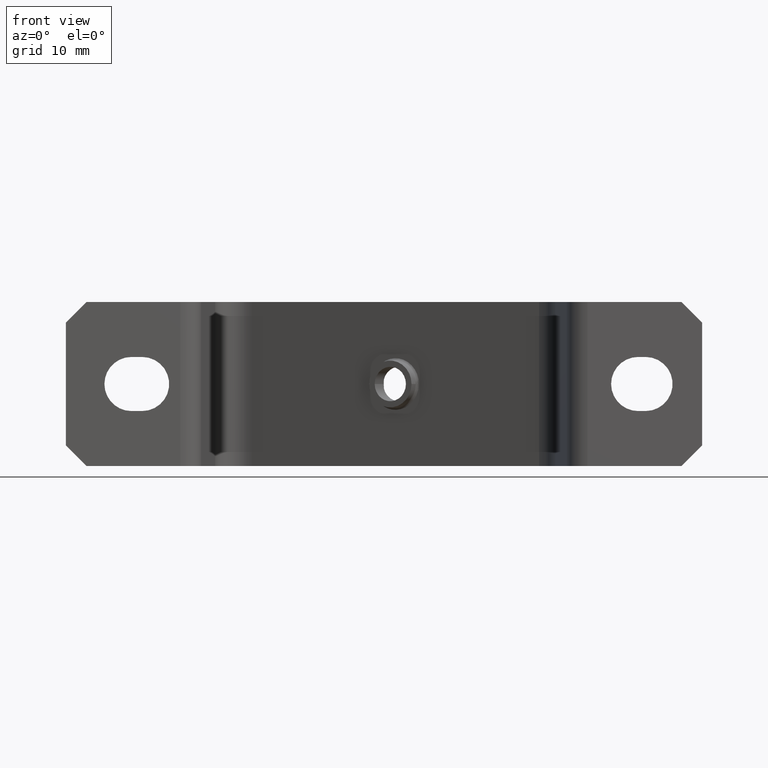
[diagram: clean part render]
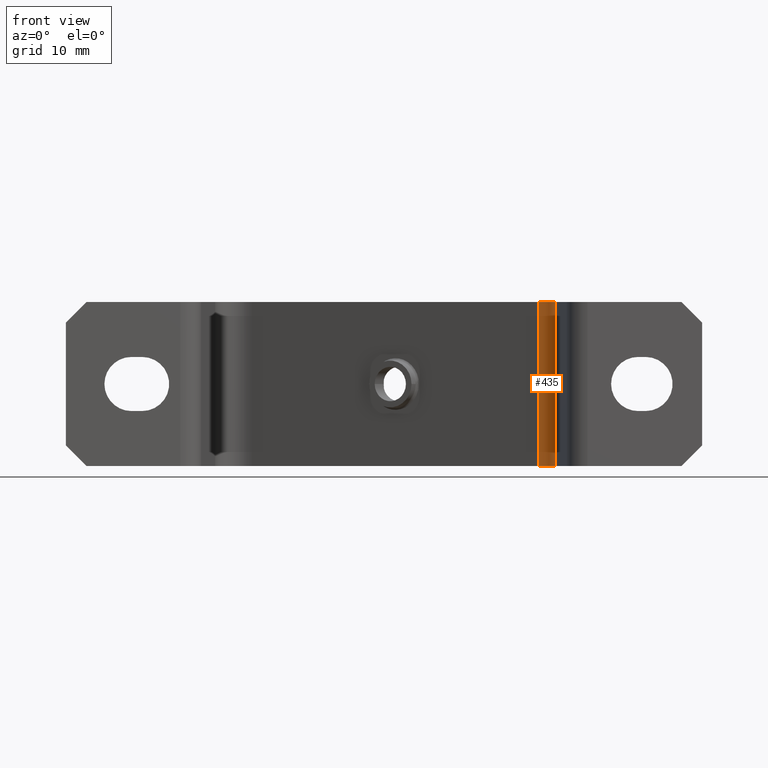
[diagram: same view with one face highlighted and labeled with its STEP entity id]
A machine part, front view. The second image highlights one B-rep face of the part: STEP entity #435.
In plain terms, the highlighted cylindrical surface (edge-blend (fillet) strip) has radius 4 mm, axis along (-0, -0, -1).
Its self-contained STEP definition (entity closure, byte-faithful):
#63 = DIRECTION ( 'NONE',  ( -1.000000000000000000, 0.0000000000000000000, 0.0000000000000000000 ) ) ;
#76 = CARTESIAN_POINT ( 'NONE',  ( 18.91641958941489300, 1.402966336341362700, 0.0000000000000000000 ) ) ;
#87 = DIRECTION ( 'NONE',  ( -0.0000000000000000000, -0.0000000000000000000, -1.000000000000000000 ) ) ;
#91 = CARTESIAN_POINT ( 'NONE',  ( 18.91641958941489300, 1.402966336341363400, 20.00000000000000000 ) ) ;
#97 = CARTESIAN_POINT ( 'NONE',  ( 16.91641958941403300, -2.061135278796311100, 20.00000000000000000 ) ) ;
#105 = FACE_OUTER_BOUND ( 'NONE', #1018, .T. ) ;
#106 = CYLINDRICAL_SURFACE ( 'NONE', #1507, 4.000000000000389000 ) ;
#140 = CARTESIAN_POINT ( 'NONE',  ( 20.90119838178151200, -1.712512307805548200, 0.0000000000000000000 ) ) ;
#144 = CARTESIAN_POINT ( 'NONE',  ( 20.90119838178151200, -1.712512307805548200, 20.00000000000000000 ) ) ;
#217 = LINE ( 'NONE', #218, #1666 ) ;
#218 = CARTESIAN_POINT ( 'NONE',  ( 20.90119838178150900, -1.712512307805447200, 20.00000000000000000 ) ) ;
#244 = DIRECTION ( 'NONE',  ( -0.0000000000000000000, -0.0000000000000000000, -1.000000000000000000 ) ) ;
#351 = EDGE_CURVE ( 'NONE', #1310, #1317, #703, .T. ) ;
#375 = EDGE_CURVE ( 'NONE', #1310, #1349, #1619, .T. ) ;
#387 = EDGE_CURVE ( 'NONE', #1317, #1345, #1687, .T. ) ;
#403 = EDGE_CURVE ( 'NONE', #1345, #1349, #217, .T. ) ;
#435 = ADVANCED_FACE ( 'NONE', ( #105 ), #106, .F. ) ;
#693 = DIRECTION ( 'NONE',  ( 0.0000000000000000000, 0.0000000000000000000, 1.000000000000000000 ) ) ;
#703 = LINE ( 'NONE', #705, #1629 ) ;
#705 = CARTESIAN_POINT ( 'NONE',  ( 18.91641958941431800, 1.402966336341729500, 20.00000000000000000 ) ) ;
#857 = DIRECTION ( 'NONE',  ( -0.0000000000000000000, -0.0000000000000000000, -1.000000000000000000 ) ) ;
#861 = DIRECTION ( 'NONE',  ( -1.000000000000000000, 0.0000000000000000000, 0.0000000000000000000 ) ) ;
#873 = CARTESIAN_POINT ( 'NONE',  ( 16.91641958941403300, -2.061135278796311100, 0.0000000000000000000 ) ) ;
#882 = DIRECTION ( 'NONE',  ( -1.000000000000000000, 0.0000000000000000000, 0.0000000000000000000 ) ) ;
#902 = CARTESIAN_POINT ( 'NONE',  ( 16.91641958941403300, -2.061135278796311100, 20.00000000000000000 ) ) ;
#903 = DIRECTION ( 'NONE',  ( -0.0000000000000000000, -0.0000000000000000000, -1.000000000000000000 ) ) ;
#1018 = EDGE_LOOP ( 'NONE', ( #1230, #1213, #1212, #1165 ) ) ;
#1165 = ORIENTED_EDGE ( 'NONE', *, *, #375, .T. ) ;
#1212 = ORIENTED_EDGE ( 'NONE', *, *, #351, .F. ) ;
#1213 = ORIENTED_EDGE ( 'NONE', *, *, #387, .F. ) ;
#1230 = ORIENTED_EDGE ( 'NONE', *, *, #403, .F. ) ;
#1310 = VERTEX_POINT ( 'NONE', #76 ) ;
#1317 = VERTEX_POINT ( 'NONE', #91 ) ;
#1345 = VERTEX_POINT ( 'NONE', #144 ) ;
#1349 = VERTEX_POINT ( 'NONE', #140 ) ;
#1507 = AXIS2_PLACEMENT_3D ( 'NONE', #97, #87, #63 ) ;
#1619 = CIRCLE ( 'NONE', #1620, 4.000000000000389000 ) ;
#1620 = AXIS2_PLACEMENT_3D ( 'NONE', #873, #857, #861 ) ;
#1629 = VECTOR ( 'NONE', #693, 1000.000000000000000 ) ;
#1666 = VECTOR ( 'NONE', #244, 1000.000000000000000 ) ;
#1672 = AXIS2_PLACEMENT_3D ( 'NONE', #902, #903, #882 ) ;
#1687 = CIRCLE ( 'NONE', #1672, 4.000000000000389000 ) ;